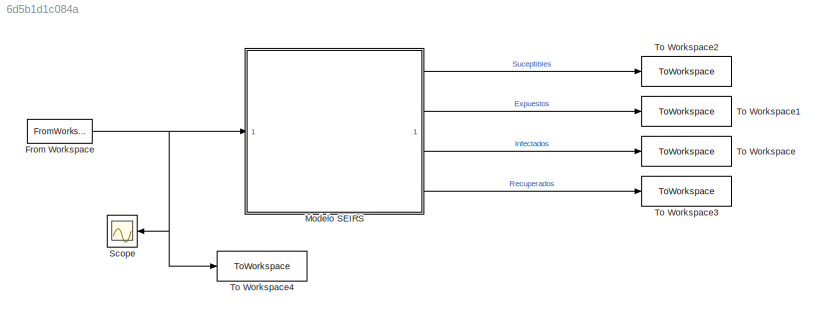
MODEL slx_6d5b1d1c084a
KIND model
CONFIG AbsTol = auto
CONFIG EnableMultiTasking = off
CONFIG FixedStep = auto
CONFIG MaxStep = auto
CONFIG MinStep = auto
CONFIG RelTol = 1e-3
CONFIG SampleTimeConstraint = Unconstrained
CONFIG SolverName = VariableStepAuto
CONFIG StartTime = 0.0
CONFIG StopTime = Dias
WORKSPACE source: mxarray member
WORKSPACE x = [0.0844291205376 0.0972801431163 0.171504041231 0.000911075297271]
BLOCK [FromWorkspace] From Workspace
  SampleTime = TS
  VariableName = u
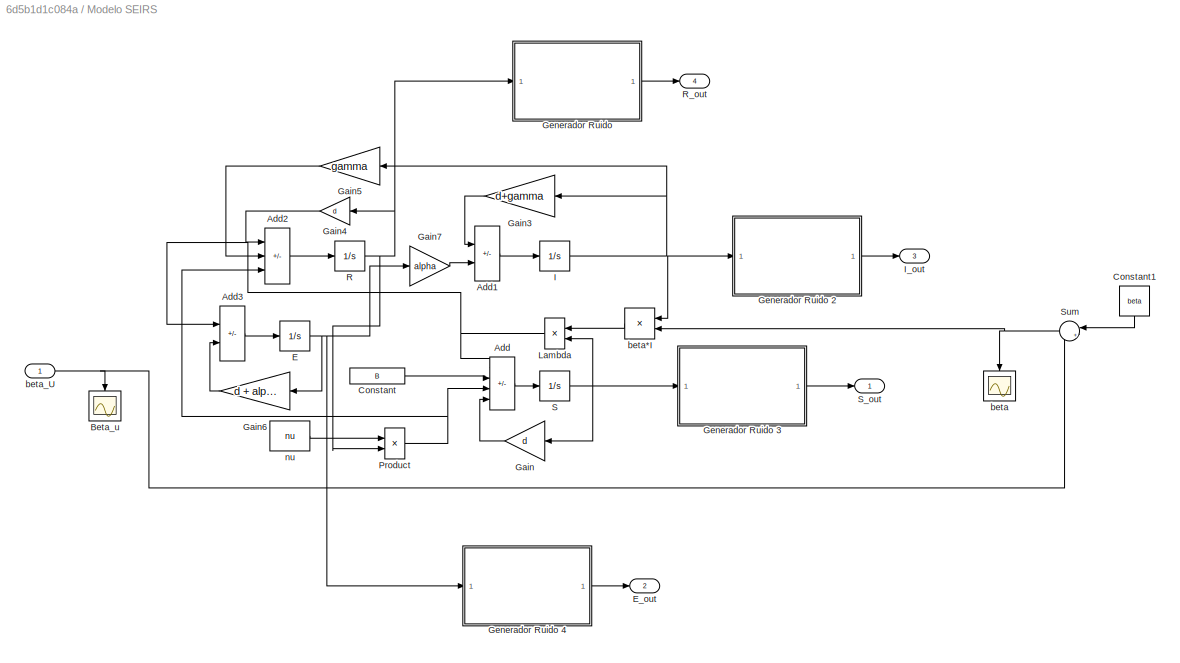
BLOCK [SubSystem] Modelo SEIRS
BLOCK [Sum] Modelo SEIRS/Add
  IconShape = rectangular
  Inputs = -++-
BLOCK [Sum] Modelo SEIRS/Add1
  IconShape = rectangular
  Inputs = -+
BLOCK [Sum] Modelo SEIRS/Add2
  IconShape = rectangular
  Inputs = -+-
BLOCK [Sum] Modelo SEIRS/Add3
  IconShape = rectangular
  Inputs = +-
BLOCK [Scope] Modelo SEIRS/Beta_u
  Floating = off
  NumInputPorts = 1
  ScopeSpecificationString = Simulink.scopes.TimeScopeBlockCfg('CurrentConfiguration', extmgr.ConfigurationSet(extmgr.Configuration('Core','General UI',true),extmgr.Configuration('Core','Source UI',true),extmgr.Configuration('Sources','WiredSimulink',true,'DataLoggingVariableName','ScopeData2'),extmgr.Configuration('Visuals','Time Domain',true,'SerializedDisplays',{struct('MinYLimReal','0.25','MaxYLimReal','0.75','YLabelReal'...<+1484ch>
BLOCK [Constant] Modelo SEIRS/Constant
  Value = B
BLOCK [Constant] Modelo SEIRS/Constant1
  NameLocation = left
  Value = beta
BLOCK [Integrator] Modelo SEIRS/E
  InitialCondition = ci(2)
  LimitOutput = on
  LowerSaturationLimit = 0
BLOCK [Outport] Modelo SEIRS/E_out
  Port = 2
BLOCK [Gain] Modelo SEIRS/Gain
  Gain = d
  NameLocation = top
BLOCK [Gain] Modelo SEIRS/Gain3
  Gain = d+gamma
  NameLocation = top
BLOCK [Gain] Modelo SEIRS/Gain4
  Gain = d
  NameLocation = top
BLOCK [Gain] Modelo SEIRS/Gain5
  Gain = gamma
  NameLocation = top
BLOCK [Gain] Modelo SEIRS/Gain6
  Gain = d + alpha
  NameLocation = top
BLOCK [Gain] Modelo SEIRS/Gain7
  Gain = alpha
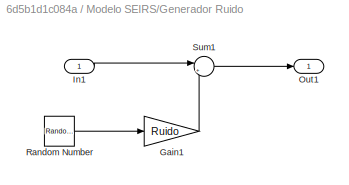
BLOCK [SubSystem] Modelo SEIRS/Generador Ruido 
BLOCK [Gain] Modelo SEIRS/Generador Ruido /Gain1
  Gain = Ruido
BLOCK [Inport] Modelo SEIRS/Generador Ruido /In1
BLOCK [Outport] Modelo SEIRS/Generador Ruido /Out1
BLOCK [RandomNumber] Modelo SEIRS/Generador Ruido /Random Number
  SampleTime = TS
  Seed = 117
  Variance = Var_ruido
BLOCK [Sum] Modelo SEIRS/Generador Ruido /Sum1
  Inputs = |++
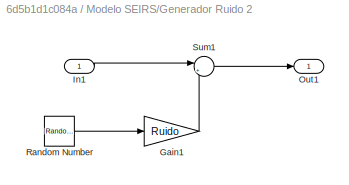
BLOCK [SubSystem] Modelo SEIRS/Generador Ruido 2
BLOCK [Gain] Modelo SEIRS/Generador Ruido 2/Gain1
  Gain = Ruido
BLOCK [Inport] Modelo SEIRS/Generador Ruido 2/In1
BLOCK [Outport] Modelo SEIRS/Generador Ruido 2/Out1
BLOCK [RandomNumber] Modelo SEIRS/Generador Ruido 2/Random Number
  SampleTime = TS
  Seed = 117
  Variance = Var_ruido
BLOCK [Sum] Modelo SEIRS/Generador Ruido 2/Sum1
  Inputs = |++
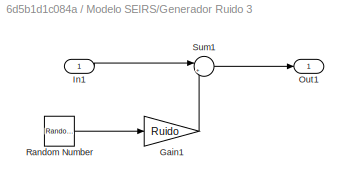
BLOCK [SubSystem] Modelo SEIRS/Generador Ruido 3
BLOCK [Gain] Modelo SEIRS/Generador Ruido 3/Gain1
  Gain = Ruido
BLOCK [Inport] Modelo SEIRS/Generador Ruido 3/In1
BLOCK [Outport] Modelo SEIRS/Generador Ruido 3/Out1
BLOCK [RandomNumber] Modelo SEIRS/Generador Ruido 3/Random Number
  SampleTime = TS
  Seed = 117
  Variance = Var_ruido
BLOCK [Sum] Modelo SEIRS/Generador Ruido 3/Sum1
  Inputs = |++
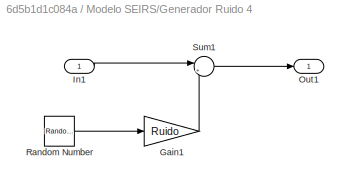
BLOCK [SubSystem] Modelo SEIRS/Generador Ruido 4
BLOCK [Gain] Modelo SEIRS/Generador Ruido 4/Gain1
  Gain = Ruido
BLOCK [Inport] Modelo SEIRS/Generador Ruido 4/In1
BLOCK [Outport] Modelo SEIRS/Generador Ruido 4/Out1
BLOCK [RandomNumber] Modelo SEIRS/Generador Ruido 4/Random Number
  SampleTime = TS
  Seed = 117
  Variance = Var_ruido
BLOCK [Sum] Modelo SEIRS/Generador Ruido 4/Sum1
  Inputs = |++
BLOCK [Integrator] Modelo SEIRS/I
  InitialCondition = ci(3)
  LimitOutput = on
  LowerSaturationLimit = 0
BLOCK [Outport] Modelo SEIRS/I_out 
  Port = 3
BLOCK [Product] Modelo SEIRS/Lambda
  NameLocation = top
BLOCK [Product] Modelo SEIRS/Product
BLOCK [Integrator] Modelo SEIRS/R
  InitialCondition = ci(4)
  LimitOutput = on
  LowerSaturationLimit = 0
BLOCK [Outport] Modelo SEIRS/R_out
  Port = 4
BLOCK [Integrator] Modelo SEIRS/S
  InitialCondition = ci(1)
  LimitOutput = on
  LowerSaturationLimit = 0
BLOCK [Outport] Modelo SEIRS/S_out
BLOCK [Sum] Modelo SEIRS/Sum
  Inputs = |++
  NameLocation = top
BLOCK [Scope] Modelo SEIRS/beta
  Floating = off
  NumInputPorts = 1
  ScopeSpecificationString = Simulink.scopes.TimeScopeBlockCfg('CurrentConfiguration', extmgr.ConfigurationSet(extmgr.Configuration('Core','General UI',true),extmgr.Configuration('Core','Source UI',true),extmgr.Configuration('Sources','WiredSimulink',true,'DataLoggingVariableName','ScopeData1'),extmgr.Configuration('Visuals','Time Domain',true,'SerializedDisplays',{struct('MinYLimReal','0.1','MaxYLimReal','0.3','YLabelReal','...<+1382ch>
BLOCK [Product] Modelo SEIRS/beta*I
  NameLocation = top
BLOCK [Inport] Modelo SEIRS/beta_U
BLOCK [Constant] Modelo SEIRS/nu
  Value = nu
BLOCK [Scope] Scope
  Floating = off
  NameLocation = top
  NumInputPorts = 1
  ScopeSpecificationString = Simulink.scopes.TimeScopeBlockCfg('CurrentConfiguration', extmgr.ConfigurationSet(extmgr.Configuration('Core','General UI',true),extmgr.Configuration('Core','Source UI',true),extmgr.Configuration('Sources','WiredSimulink',true,'DataLoggingVariableName','ScopeData1'),extmgr.Configuration('Visuals','Time Domain',true,'SerializedDisplays',{struct('MinYLimReal','0.25','MaxYLimReal','0.75','YLabelReal'...<+1467ch>
BLOCK [ToWorkspace] To Workspace
  FixptAsFi = on
  MaxDataPoints = inf
  SampleTime = TS
  SaveFormat = Structure With Time
  VariableName = I
BLOCK [ToWorkspace] To Workspace1
  FixptAsFi = on
  MaxDataPoints = inf
  SampleTime = TS
  SaveFormat = Structure With Time
  VariableName = E
BLOCK [ToWorkspace] To Workspace2
  FixptAsFi = on
  MaxDataPoints = inf
  NameLocation = left
  SampleTime = TS
  SaveFormat = Structure With Time
  VariableName = S
BLOCK [ToWorkspace] To Workspace3
  FixptAsFi = on
  MaxDataPoints = inf
  SampleTime = TS
  SaveFormat = Structure With Time
  VariableName = R
BLOCK [ToWorkspace] To Workspace4
  FixptAsFi = on
  MaxDataPoints = inf
  SampleTime = TS
  SaveFormat = Structure With Time
  VariableName = Entrada_U
NET From Workspace:1 -> Modelo SEIRS:1, Scope:1, To Workspace4:1
LINE Modelo SEIRS/Add1:1 -> Modelo SEIRS/I:1
LINE Modelo SEIRS/Add2:1 -> Modelo SEIRS/R:1
LINE Modelo SEIRS/Add3:1 -> Modelo SEIRS/E:1
LINE Modelo SEIRS/Add:1 -> Modelo SEIRS/S:1
LINE Modelo SEIRS/Constant1:1 -> Modelo SEIRS/Sum:1
LINE Modelo SEIRS/Constant:1 -> Modelo SEIRS/Add:2
NET Modelo SEIRS/E:1 -> Modelo SEIRS/Gain6:1, Modelo SEIRS/Gain7:1, Modelo SEIRS/Generador Ruido 4:1
LINE Modelo SEIRS/Gain3:1 -> Modelo SEIRS/Add1:1
LINE Modelo SEIRS/Gain4:1 -> Modelo SEIRS/Add2:1
LINE Modelo SEIRS/Gain5:1 -> Modelo SEIRS/Add2:2
LINE Modelo SEIRS/Gain6:1 -> Modelo SEIRS/Add3:2
LINE Modelo SEIRS/Gain7:1 -> Modelo SEIRS/Add1:2
LINE Modelo SEIRS/Gain:1 -> Modelo SEIRS/Add:4
LINE Modelo SEIRS/Generador Ruido /Gain1:1 -> Modelo SEIRS/Generador Ruido /Sum1:2
LINE Modelo SEIRS/Generador Ruido /In1:1 -> Modelo SEIRS/Generador Ruido /Sum1:1
LINE Modelo SEIRS/Generador Ruido /Random Number:1 -> Modelo SEIRS/Generador Ruido /Gain1:1
LINE Modelo SEIRS/Generador Ruido /Sum1:1 -> Modelo SEIRS/Generador Ruido /Out1:1
LINE Modelo SEIRS/Generador Ruido 2/Gain1:1 -> Modelo SEIRS/Generador Ruido 2/Sum1:2
LINE Modelo SEIRS/Generador Ruido 2/In1:1 -> Modelo SEIRS/Generador Ruido 2/Sum1:1
LINE Modelo SEIRS/Generador Ruido 2/Random Number:1 -> Modelo SEIRS/Generador Ruido 2/Gain1:1
LINE Modelo SEIRS/Generador Ruido 2/Sum1:1 -> Modelo SEIRS/Generador Ruido 2/Out1:1
LINE Modelo SEIRS/Generador Ruido 2:1 -> Modelo SEIRS/I_out :1
LINE Modelo SEIRS/Generador Ruido 3/Gain1:1 -> Modelo SEIRS/Generador Ruido 3/Sum1:2
LINE Modelo SEIRS/Generador Ruido 3/In1:1 -> Modelo SEIRS/Generador Ruido 3/Sum1:1
LINE Modelo SEIRS/Generador Ruido 3/Random Number:1 -> Modelo SEIRS/Generador Ruido 3/Gain1:1
LINE Modelo SEIRS/Generador Ruido 3/Sum1:1 -> Modelo SEIRS/Generador Ruido 3/Out1:1
LINE Modelo SEIRS/Generador Ruido 3:1 -> Modelo SEIRS/S_out:1
LINE Modelo SEIRS/Generador Ruido 4/Gain1:1 -> Modelo SEIRS/Generador Ruido 4/Sum1:2
LINE Modelo SEIRS/Generador Ruido 4/In1:1 -> Modelo SEIRS/Generador Ruido 4/Sum1:1
LINE Modelo SEIRS/Generador Ruido 4/Random Number:1 -> Modelo SEIRS/Generador Ruido 4/Gain1:1
LINE Modelo SEIRS/Generador Ruido 4/Sum1:1 -> Modelo SEIRS/Generador Ruido 4/Out1:1
LINE Modelo SEIRS/Generador Ruido 4:1 -> Modelo SEIRS/E_out:1
LINE Modelo SEIRS/Generador Ruido :1 -> Modelo SEIRS/R_out:1
NET Modelo SEIRS/I:1 -> Modelo SEIRS/Gain3:1, Modelo SEIRS/Gain5:1, Modelo SEIRS/Generador Ruido 2:1, Modelo SEIRS/beta*I:1
NET Modelo SEIRS/Lambda:1 -> Modelo SEIRS/Add3:1, Modelo SEIRS/Add:1
NET Modelo SEIRS/Product:1 -> Modelo SEIRS/Add2:3, Modelo SEIRS/Add:3
NET Modelo SEIRS/R:1 -> Modelo SEIRS/Gain4:1, Modelo SEIRS/Generador Ruido :1, Modelo SEIRS/Product:2
NET Modelo SEIRS/S:1 -> Modelo SEIRS/Gain:1, Modelo SEIRS/Generador Ruido 3:1, Modelo SEIRS/Lambda:2
NET Modelo SEIRS/Sum:1 -> Modelo SEIRS/beta*I:2, Modelo SEIRS/beta:1
LINE Modelo SEIRS/beta*I:1 -> Modelo SEIRS/Lambda:1
NET Modelo SEIRS/beta_U:1 -> Modelo SEIRS/Beta_u:1, Modelo SEIRS/Sum:2
LINE Modelo SEIRS/nu:1 -> Modelo SEIRS/Product:1
LINE Modelo SEIRS:1 -> To Workspace2:1
LINE Modelo SEIRS:2 -> To Workspace1:1
LINE Modelo SEIRS:3 -> To Workspace:1
LINE Modelo SEIRS:4 -> To Workspace3:1
note: NET lines group one-source signal fan-out (src -> all destinations, sorted); 1:1 wires keep LINE
